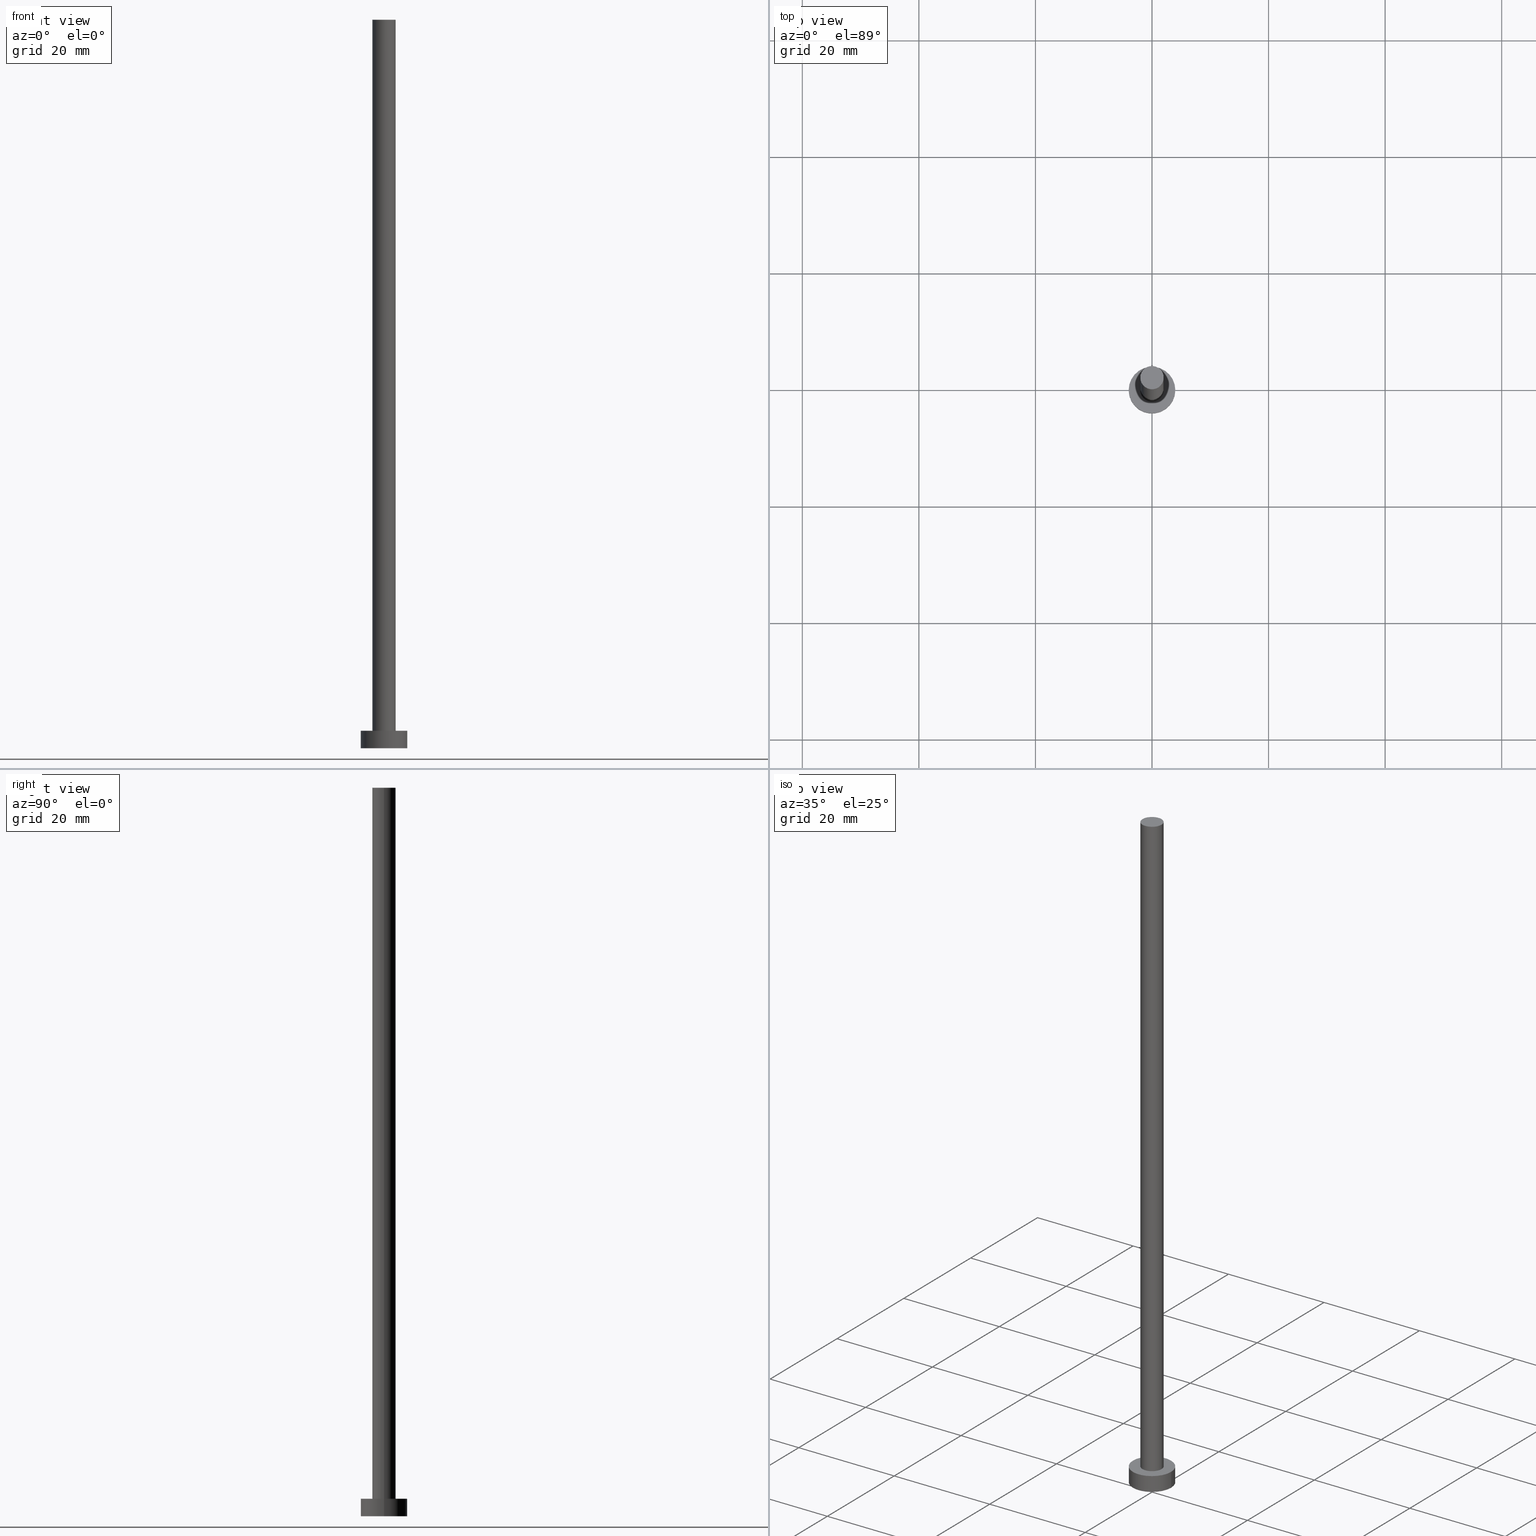
[diagram: canonical four-view strip — front | top / right | iso, engineering-drawing reading convention]
A machine part, canonical four-view strip (front | top / right | iso — engineering-drawing reading convention). The complete STEP part file that produces these views, byte-faithful:
ISO-10303-21;
HEADER;
FILE_DESCRIPTION (( 'STEP AP203' ),
    '1' );
FILE_NAME ('fbfe.STEP',
    '2023-02-13T15:33:39',
    ( '' ),
    ( '' ),
    'SwSTEP 2.0',
    'SolidWorks 2019',
    '' );
FILE_SCHEMA (( 'CONFIG_CONTROL_DESIGN' ));
ENDSEC;

DATA;
#1 = DIRECTION ( 'NONE',  ( 0.000000000000000000, 0.000000000000000000, 1.000000000000000000 ) ) ;
#2 = DIRECTION ( 'NONE',  ( 0.000000000000000000, 0.000000000000000000, 1.000000000000000000 ) ) ;
#3 = ADVANCED_BREP_SHAPE_REPRESENTATION ( 'fbfe', ( #205, #40 ), #12 ) ;
#4 = FACE_OUTER_BOUND ( 'NONE', #8, .T. ) ;
#5 = LINE ( 'NONE', #167, #36 ) ;
#6 = CIRCLE ( 'NONE', #179, 4.000000000000000000 ) ;
#7 = CIRCLE ( 'NONE', #86, 2.000000000000000000 ) ;
#8 = EDGE_LOOP ( 'NONE', ( #144, #73, #32, #38 ) ) ;
#9 = CYLINDRICAL_SURFACE ( 'NONE', #136, 2.000000000000000000 ) ;
#10 = ORIENTED_EDGE ( 'NONE', *, *, #250, .F. ) ;
#11 = EDGE_CURVE ( 'NONE', #169, #105, #16, .T. ) ;
#12 =( GEOMETRIC_REPRESENTATION_CONTEXT ( 3 ) GLOBAL_UNCERTAINTY_ASSIGNED_CONTEXT ( ( #122 ) ) GLOBAL_UNIT_ASSIGNED_CONTEXT ( ( #99, #103, #227 ) ) REPRESENTATION_CONTEXT ( 'NONE', 'WORKASPACE' ) );
#13 = ORIENTED_EDGE ( 'NONE', *, *, #154, .T. ) ;
#14 = COORDINATED_UNIVERSAL_TIME_OFFSET ( 1, 0, .AHEAD. ) ;
#15 = PERSON_AND_ORGANIZATION ( #145, #134 ) ;
#16 = CIRCLE ( 'NONE', #58, 4.000000000000000000 ) ;
#17 = ADVANCED_FACE ( 'NONE', ( #251 ), #191, .T. ) ;
#18 = ADVANCED_FACE ( 'NONE', ( #55 ), #20, .T. ) ;
#19 = APPLICATION_PROTOCOL_DEFINITION ( 'international standard', 'config_control_design', 1994, #168 ) ;
#20 = CYLINDRICAL_SURFACE ( 'NONE', #189, 2.000000000000000000 ) ;
#21 = DIRECTION ( 'NONE',  ( 1.000000000000000000, 0.000000000000000000, -0.000000000000000000 ) ) ;
#22 = APPROVAL ( #50, 'NEUR�EN�' ) ;
#23 = PRODUCT ( 'fbfe', 'fbfe', '', ( #34 ) ) ;
#24 = CARTESIAN_POINT ( 'NONE',  ( 0.000000000000000000, 0.000000000000000000, 3.000000000000000000 ) ) ;
#25 = PERSON_AND_ORGANIZATION_ROLE ( 'creator' ) ;
#26 = CALENDAR_DATE ( 2023, 13, 2 ) ;
#27 = CARTESIAN_POINT ( 'NONE',  ( 0.000000000000000000, 0.000000000000000000, 3.000000000000000000 ) ) ;
#28 = EDGE_LOOP ( 'NONE', ( #83, #236, #13, #101 ) ) ;
#29 = ORIENTED_EDGE ( 'NONE', *, *, #210, .F. ) ;
#30 = DIRECTION ( 'NONE',  ( 1.000000000000000000, 0.000000000000000000, 0.000000000000000000 ) ) ;
#31 = CALENDAR_DATE ( 2023, 13, 2 ) ;
#32 = ORIENTED_EDGE ( 'NONE', *, *, #210, .T. ) ;
#33 = AXIS2_PLACEMENT_3D ( 'NONE', #35, #2, #160 ) ;
#34 = MECHANICAL_CONTEXT ( 'NONE', #79, 'mechanical' ) ;
#35 = CARTESIAN_POINT ( 'NONE',  ( 0.000000000000000000, 0.000000000000000000, 0.000000000000000000 ) ) ;
#36 = VECTOR ( 'NONE', #201, 1000.000000000000000 ) ;
#37 = PERSON_AND_ORGANIZATION_ROLE ( 'design_owner' ) ;
#38 = ORIENTED_EDGE ( 'NONE', *, *, #142, .T. ) ;
#39 = CARTESIAN_POINT ( 'NONE',  ( -2.000000000000000000, 0.000000000000000000, 125.0000000000000000 ) ) ;
#40 = AXIS2_PLACEMENT_3D ( 'NONE', #185, #190, #89 ) ;
#41 = DIRECTION ( 'NONE',  ( -0.000000000000000000, -0.000000000000000000, -1.000000000000000000 ) ) ;
#42 = DIRECTION ( 'NONE',  ( 1.000000000000000000, 0.000000000000000000, 0.000000000000000000 ) ) ;
#43 = APPROVAL ( #233, 'NEUR�EN�' ) ;
#44 = DIRECTION ( 'NONE',  ( -0.000000000000000000, -0.000000000000000000, -1.000000000000000000 ) ) ;
#45 = VECTOR ( 'NONE', #175, 1000.000000000000000 ) ;
#46 = LOCAL_TIME ( 16, 33, 39.00000000000000000, #14 ) ;
#47 = CARTESIAN_POINT ( 'NONE',  ( 0.000000000000000000, 0.000000000000000000, 0.000000000000000000 ) ) ;
#48 = APPROVAL_PERSON_ORGANIZATION ( #222, #22, #104 ) ;
#49 = PLANE ( 'NONE',  #198 ) ;
#50 = APPROVAL_STATUS ( 'not_yet_approved' ) ;
#51 = VERTEX_POINT ( 'NONE', #57 ) ;
#52 = CARTESIAN_POINT ( 'NONE',  ( 0.000000000000000000, 0.000000000000000000, 125.0000000000000000 ) ) ;
#53 = PERSON_AND_ORGANIZATION_ROLE ( 'creator' ) ;
#54 = ADVANCED_FACE ( 'NONE', ( #133 ), #213, .F. ) ;
#55 = FACE_OUTER_BOUND ( 'NONE', #162, .T. ) ;
#56 = DATE_TIME_ROLE ( 'creation_date' ) ;
#57 = CARTESIAN_POINT ( 'NONE',  ( -2.000000000000000000, 0.000000000000000000, 3.000000000000000000 ) ) ;
#58 = AXIS2_PLACEMENT_3D ( 'NONE', #109, #113, #232 ) ;
#59 = CYLINDRICAL_SURFACE ( 'NONE', #92, 4.000000000000000000 ) ;
#60 = PRODUCT_DEFINITION ( 'NEZN�M�', '', #239, #240 ) ;
#61 = LINE ( 'NONE', #238, #45 ) ;
#62 = CARTESIAN_POINT ( 'NONE',  ( 0.000000000000000000, 0.000000000000000000, 3.000000000000000000 ) ) ;
#63 = VECTOR ( 'NONE', #218, 1000.000000000000000 ) ;
#64 = ADVANCED_FACE ( 'NONE', ( #77 ), #59, .T. ) ;
#65 = AXIS2_PLACEMENT_3D ( 'NONE', #149, #204, #164 ) ;
#66 = CC_DESIGN_DATE_AND_TIME_ASSIGNMENT ( #148, #225, ( #70 ) ) ;
#67 = APPROVAL_DATE_TIME ( #181, #22 ) ;
#68 = PERSON_AND_ORGANIZATION ( #145, #134 ) ;
#69 = PERSON_AND_ORGANIZATION ( #145, #134 ) ;
#70 = SECURITY_CLASSIFICATION ( '', '', #165 ) ;
#71 = CARTESIAN_POINT ( 'NONE',  ( 0.000000000000000000, 0.000000000000000000, 125.0000000000000000 ) ) ;
#72 = DATE_AND_TIME ( #235, #46 ) ;
#73 = ORIENTED_EDGE ( 'NONE', *, *, #74, .F. ) ;
#74 = EDGE_CURVE ( 'NONE', #203, #215, #96, .T. ) ;
#75 = LOCAL_TIME ( 16, 33, 39.00000000000000000, #138 ) ;
#76 = DIRECTION ( 'NONE',  ( -1.000000000000000000, 0.000000000000000000, 0.000000000000000000 ) ) ;
#77 = FACE_OUTER_BOUND ( 'NONE', #212, .T. ) ;
#78 = CC_DESIGN_PERSON_AND_ORGANIZATION_ASSIGNMENT ( #15, #53, ( #60 ) ) ;
#79 = APPLICATION_CONTEXT ( 'configuration controlled 3d designs of mechanical parts and assemblies' ) ;
#80 = CARTESIAN_POINT ( 'NONE',  ( 0.000000000000000000, 0.000000000000000000, 125.0000000000000000 ) ) ;
#81 = PRODUCT_RELATED_PRODUCT_CATEGORY ( 'detail', '', ( #23 ) ) ;
#82 = CC_DESIGN_SECURITY_CLASSIFICATION ( #70, ( #239 ) ) ;
#83 = ORIENTED_EDGE ( 'NONE', *, *, #176, .F. ) ;
#84 = CC_DESIGN_PERSON_AND_ORGANIZATION_ASSIGNMENT ( #95, #249, ( #239 ) ) ;
#85 = VERTEX_POINT ( 'NONE', #195 ) ;
#86 = AXIS2_PLACEMENT_3D ( 'NONE', #24, #97, #124 ) ;
#87 = VERTEX_POINT ( 'NONE', #237 ) ;
#88 = ADVANCED_FACE ( 'NONE', ( #4 ), #158, .T. ) ;
#89 = DIRECTION ( 'NONE',  ( 1.000000000000000000, 0.000000000000000000, 0.000000000000000000 ) ) ;
#90 = LOCAL_TIME ( 16, 33, 39.00000000000000000, #223 ) ;
#91 = EDGE_LOOP ( 'NONE', ( #108, #193 ) ) ;
#92 = AXIS2_PLACEMENT_3D ( 'NONE', #98, #44, #76 ) ;
#93 = CC_DESIGN_APPROVAL ( #43, ( #239 ) ) ;
#94 = DIRECTION ( 'NONE',  ( 0.000000000000000000, 0.000000000000000000, 1.000000000000000000 ) ) ;
#95 = PERSON_AND_ORGANIZATION ( #145, #134 ) ;
#96 = CIRCLE ( 'NONE', #114, 4.000000000000000000 ) ;
#97 = DIRECTION ( 'NONE',  ( 0.000000000000000000, 0.000000000000000000, 1.000000000000000000 ) ) ;
#98 = CARTESIAN_POINT ( 'NONE',  ( 0.000000000000000000, 0.000000000000000000, 3.000000000000000000 ) ) ;
#99 =( LENGTH_UNIT ( ) NAMED_UNIT ( * ) SI_UNIT ( .MILLI., .METRE. ) );
#100 = ORIENTED_EDGE ( 'NONE', *, *, #154, .F. ) ;
#101 = ORIENTED_EDGE ( 'NONE', *, *, #209, .T. ) ;
#102 = DIRECTION ( 'NONE',  ( -0.000000000000000000, -0.000000000000000000, -1.000000000000000000 ) ) ;
#103 =( NAMED_UNIT ( * ) PLANE_ANGLE_UNIT ( ) SI_UNIT ( $, .RADIAN. ) );
#104 = APPROVAL_ROLE ( '' ) ;
#105 = VERTEX_POINT ( 'NONE', #220 ) ;
#106 = ORIENTED_EDGE ( 'NONE', *, *, #250, .T. ) ;
#107 = ORIENTED_EDGE ( 'NONE', *, *, #135, .T. ) ;
#108 = ORIENTED_EDGE ( 'NONE', *, *, #142, .F. ) ;
#109 = CARTESIAN_POINT ( 'NONE',  ( 0.000000000000000000, 0.000000000000000000, 0.000000000000000000 ) ) ;
#110 = EDGE_CURVE ( 'NONE', #85, #188, #146, .T. ) ;
#111 = APPROVAL_DATE_TIME ( #184, #43 ) ;
#112 = ORIENTED_EDGE ( 'NONE', *, *, #176, .T. ) ;
#113 = DIRECTION ( 'NONE',  ( 0.000000000000000000, 0.000000000000000000, 1.000000000000000000 ) ) ;
#114 = AXIS2_PLACEMENT_3D ( 'NONE', #62, #157, #137 ) ;
#115 = APPROVAL ( #170, 'NEUR�EN�' ) ;
#116 = DIRECTION ( 'NONE',  ( -0.000000000000000000, -0.000000000000000000, -1.000000000000000000 ) ) ;
#117 = PRODUCT_DEFINITION_SHAPE ( 'NONE', 'NONE',  #60 ) ;
#118 = CARTESIAN_POINT ( 'NONE',  ( 2.000000000000000000, 2.449293598294705921E-16, 125.0000000000000000 ) ) ;
#119 = CARTESIAN_POINT ( 'NONE',  ( -2.000000000000000000, 0.000000000000000000, 125.0000000000000000 ) ) ;
#120 = DIRECTION ( 'NONE',  ( 0.000000000000000000, 0.000000000000000000, 1.000000000000000000 ) ) ;
#121 = CARTESIAN_POINT ( 'NONE',  ( 0.000000000000000000, 0.000000000000000000, 3.000000000000000000 ) ) ;
#122 = UNCERTAINTY_MEASURE_WITH_UNIT (LENGTH_MEASURE( 1.000000000000000082E-05 ), #99, 'distance_accuracy_value', 'NONE');
#123 = CLOSED_SHELL ( 'NONE', ( #18, #64, #88, #234, #54, #214, #17 ) ) ;
#124 = DIRECTION ( 'NONE',  ( 1.000000000000000000, 0.000000000000000000, 0.000000000000000000 ) ) ;
#125 = ORIENTED_EDGE ( 'NONE', *, *, #187, .F. ) ;
#126 = FACE_BOUND ( 'NONE', #226, .T. ) ;
#127 = SHAPE_DEFINITION_REPRESENTATION ( #117, #3 ) ;
#128 = CC_DESIGN_PERSON_AND_ORGANIZATION_ASSIGNMENT ( #192, #37, ( #23 ) ) ;
#129 = CARTESIAN_POINT ( 'NONE',  ( 4.000000000000000000, 4.898587196589412829E-16, 3.000000000000000000 ) ) ;
#130 = VECTOR ( 'NONE', #116, 1000.000000000000000 ) ;
#131 = CARTESIAN_POINT ( 'NONE',  ( 0.000000000000000000, 0.000000000000000000, 125.0000000000000000 ) ) ;
#132 = CC_DESIGN_PERSON_AND_ORGANIZATION_ASSIGNMENT ( #68, #25, ( #239 ) ) ;
#133 = FACE_OUTER_BOUND ( 'NONE', #91, .T. ) ;
#134 = ORGANIZATION ( 'NEUR�EN�', 'NEUR�EN�', '' ) ;
#135 = EDGE_CURVE ( 'NONE', #215, #169, #61, .T. ) ;
#136 = AXIS2_PLACEMENT_3D ( 'NONE', #52, #102, #207 ) ;
#137 = DIRECTION ( 'NONE',  ( 1.000000000000000000, 0.000000000000000000, 0.000000000000000000 ) ) ;
#138 = COORDINATED_UNIVERSAL_TIME_OFFSET ( 1, 0, .AHEAD. ) ;
#139 = LINE ( 'NONE', #39, #63 ) ;
#140 = CC_DESIGN_DATE_AND_TIME_ASSIGNMENT ( #186, #56, ( #60 ) ) ;
#141 = AXIS2_PLACEMENT_3D ( 'NONE', #71, #153, #21 ) ;
#142 = EDGE_CURVE ( 'NONE', #105, #169, #6, .T. ) ;
#143 = DIRECTION ( 'NONE',  ( 0.000000000000000000, 0.000000000000000000, 1.000000000000000000 ) ) ;
#144 = ORIENTED_EDGE ( 'NONE', *, *, #135, .F. ) ;
#145 = PERSON ( 'NEUR�EN�', 'NEUR�EN�', 'NEUR�EN�', ('NEUR�EN�'), ('NEUR�EN�'), ('NEUR�EN�') ) ;
#146 = CIRCLE ( 'NONE', #197, 2.000000000000000000 ) ;
#147 = CIRCLE ( 'NONE', #228, 2.000000000000000000 ) ;
#148 = DATE_AND_TIME ( #31, #90 ) ;
#149 = CARTESIAN_POINT ( 'NONE',  ( 0.000000000000000000, 0.000000000000000000, 125.0000000000000000 ) ) ;
#150 = COORDINATED_UNIVERSAL_TIME_OFFSET ( 1, 0, .AHEAD. ) ;
#151 = ORIENTED_EDGE ( 'NONE', *, *, #74, .T. ) ;
#152 = CIRCLE ( 'NONE', #194, 4.000000000000000000 ) ;
#153 = DIRECTION ( 'NONE',  ( 0.000000000000000000, 0.000000000000000000, 1.000000000000000000 ) ) ;
#154 = EDGE_CURVE ( 'NONE', #188, #51, #139, .T. ) ;
#155 = CC_DESIGN_PERSON_AND_ORGANIZATION_ASSIGNMENT ( #69, #202, ( #70 ) ) ;
#156 = PERSON_AND_ORGANIZATION ( #145, #134 ) ;
#157 = DIRECTION ( 'NONE',  ( 0.000000000000000000, 0.000000000000000000, 1.000000000000000000 ) ) ;
#158 = CYLINDRICAL_SURFACE ( 'NONE', #224, 4.000000000000000000 ) ;
#159 = LOCAL_TIME ( 16, 33, 39.00000000000000000, #150 ) ;
#160 = DIRECTION ( 'NONE',  ( 1.000000000000000000, 0.000000000000000000, -0.000000000000000000 ) ) ;
#161 = FACE_OUTER_BOUND ( 'NONE', #28, .T. ) ;
#162 = EDGE_LOOP ( 'NONE', ( #255, #112, #206, #100 ) ) ;
#163 = APPLICATION_PROTOCOL_DEFINITION ( 'international standard', 'config_control_design', 1994, #79 ) ;
#164 = DIRECTION ( 'NONE',  ( 1.000000000000000000, 0.000000000000000000, 0.000000000000000000 ) ) ;
#165 = SECURITY_CLASSIFICATION_LEVEL ( 'unclassified' ) ;
#166 = ORIENTED_EDGE ( 'NONE', *, *, #110, .T. ) ;
#167 = CARTESIAN_POINT ( 'NONE',  ( -4.000000000000000000, 0.000000000000000000, 3.000000000000000000 ) ) ;
#168 = APPLICATION_CONTEXT ( 'configuration controlled 3d designs of mechanical parts and assemblies' ) ;
#169 = VERTEX_POINT ( 'NONE', #219 ) ;
#170 = APPROVAL_STATUS ( 'not_yet_approved' ) ;
#171 = DIRECTION ( 'NONE',  ( -0.000000000000000000, -0.000000000000000000, -1.000000000000000000 ) ) ;
#172 = DIRECTION ( 'NONE',  ( 1.000000000000000000, 0.000000000000000000, 0.000000000000000000 ) ) ;
#173 = DIRECTION ( 'NONE',  ( 1.000000000000000000, 0.000000000000000000, 0.000000000000000000 ) ) ;
#174 = CC_DESIGN_APPROVAL ( #22, ( #70 ) ) ;
#175 = DIRECTION ( 'NONE',  ( -0.000000000000000000, -0.000000000000000000, -1.000000000000000000 ) ) ;
#176 = EDGE_CURVE ( 'NONE', #85, #87, #199, .T. ) ;
#177 = ORIENTED_EDGE ( 'NONE', *, *, #244, .T. ) ;
#178 = DIRECTION ( 'NONE',  ( 1.000000000000000000, 0.000000000000000000, -0.000000000000000000 ) ) ;
#179 = AXIS2_PLACEMENT_3D ( 'NONE', #47, #120, #173 ) ;
#180 = CARTESIAN_POINT ( 'NONE',  ( 0.000000000000000000, 0.000000000000000000, 3.000000000000000000 ) ) ;
#181 = DATE_AND_TIME ( #245, #159 ) ;
#182 = ORIENTED_EDGE ( 'NONE', *, *, #11, .T. ) ;
#183 = LOCAL_TIME ( 16, 33, 39.00000000000000000, #252 ) ;
#184 = DATE_AND_TIME ( #26, #75 ) ;
#185 = CARTESIAN_POINT ( 'NONE',  ( 0.000000000000000000, 0.000000000000000000, 0.000000000000000000 ) ) ;
#186 = DATE_AND_TIME ( #211, #183 ) ;
#187 = EDGE_CURVE ( 'NONE', #87, #51, #147, .T. ) ;
#188 = VERTEX_POINT ( 'NONE', #119 ) ;
#189 = AXIS2_PLACEMENT_3D ( 'NONE', #131, #171, #253 ) ;
#190 = DIRECTION ( 'NONE',  ( 0.000000000000000000, 0.000000000000000000, 1.000000000000000000 ) ) ;
#191 = PLANE ( 'NONE',  #141 ) ;
#192 = PERSON_AND_ORGANIZATION ( #145, #134 ) ;
#193 = ORIENTED_EDGE ( 'NONE', *, *, #11, .F. ) ;
#194 = AXIS2_PLACEMENT_3D ( 'NONE', #180, #247, #30 ) ;
#195 = CARTESIAN_POINT ( 'NONE',  ( 2.000000000000000000, 2.449293598294705921E-16, 125.0000000000000000 ) ) ;
#196 = CARTESIAN_POINT ( 'NONE',  ( -4.000000000000000000, 0.000000000000000000, 3.000000000000000000 ) ) ;
#197 = AXIS2_PLACEMENT_3D ( 'NONE', #80, #1, #172 ) ;
#198 = AXIS2_PLACEMENT_3D ( 'NONE', #243, #143, #178 ) ;
#199 = LINE ( 'NONE', #118, #130 ) ;
#200 = ORIENTED_EDGE ( 'NONE', *, *, #209, .F. ) ;
#201 = DIRECTION ( 'NONE',  ( -0.000000000000000000, -0.000000000000000000, -1.000000000000000000 ) ) ;
#202 = PERSON_AND_ORGANIZATION_ROLE ( 'classification_officer' ) ;
#203 = VERTEX_POINT ( 'NONE', #196 ) ;
#204 = DIRECTION ( 'NONE',  ( 0.000000000000000000, 0.000000000000000000, 1.000000000000000000 ) ) ;
#205 = MANIFOLD_SOLID_BREP ( 'P�idat vysunut�m3', #123 ) ;
#206 = ORIENTED_EDGE ( 'NONE', *, *, #187, .T. ) ;
#207 = DIRECTION ( 'NONE',  ( -1.000000000000000000, 0.000000000000000000, 0.000000000000000000 ) ) ;
#208 = APPROVAL_PERSON_ORGANIZATION ( #156, #43, #241 ) ;
#209 = EDGE_CURVE ( 'NONE', #51, #87, #7, .T. ) ;
#210 = EDGE_CURVE ( 'NONE', #203, #105, #5, .T. ) ;
#211 = CALENDAR_DATE ( 2023, 13, 2 ) ;
#212 = EDGE_LOOP ( 'NONE', ( #10, #107, #182, #29 ) ) ;
#213 = PLANE ( 'NONE',  #33 ) ;
#214 = ADVANCED_FACE ( 'NONE', ( #161 ), #9, .T. ) ;
#215 = VERTEX_POINT ( 'NONE', #129 ) ;
#216 = DIRECTION ( 'NONE',  ( -1.000000000000000000, 0.000000000000000000, 0.000000000000000000 ) ) ;
#217 = CC_DESIGN_APPROVAL ( #115, ( #60 ) ) ;
#218 = DIRECTION ( 'NONE',  ( -0.000000000000000000, -0.000000000000000000, -1.000000000000000000 ) ) ;
#219 = CARTESIAN_POINT ( 'NONE',  ( 4.000000000000000000, 4.898587196589412829E-16, 0.000000000000000000 ) ) ;
#220 = CARTESIAN_POINT ( 'NONE',  ( -4.000000000000000000, 0.000000000000000000, 0.000000000000000000 ) ) ;
#221 = FACE_OUTER_BOUND ( 'NONE', #246, .T. ) ;
#222 = PERSON_AND_ORGANIZATION ( #145, #134 ) ;
#223 = COORDINATED_UNIVERSAL_TIME_OFFSET ( 1, 0, .AHEAD. ) ;
#224 = AXIS2_PLACEMENT_3D ( 'NONE', #121, #41, #216 ) ;
#225 = DATE_TIME_ROLE ( 'classification_date' ) ;
#226 = EDGE_LOOP ( 'NONE', ( #200, #125 ) ) ;
#227 =( NAMED_UNIT ( * ) SI_UNIT ( $, .STERADIAN. ) SOLID_ANGLE_UNIT ( ) );
#228 = AXIS2_PLACEMENT_3D ( 'NONE', #27, #94, #42 ) ;
#229 = APPROVAL_DATE_TIME ( #72, #115 ) ;
#230 = EDGE_LOOP ( 'NONE', ( #177, #166 ) ) ;
#231 = APPROVAL_ROLE ( '' ) ;
#232 = DIRECTION ( 'NONE',  ( 1.000000000000000000, 0.000000000000000000, 0.000000000000000000 ) ) ;
#233 = APPROVAL_STATUS ( 'not_yet_approved' ) ;
#234 = ADVANCED_FACE ( 'NONE', ( #126, #221 ), #49, .T. ) ;
#235 = CALENDAR_DATE ( 2023, 13, 2 ) ;
#236 = ORIENTED_EDGE ( 'NONE', *, *, #244, .F. ) ;
#237 = CARTESIAN_POINT ( 'NONE',  ( 2.000000000000000000, 2.449293598294705921E-16, 3.000000000000000000 ) ) ;
#238 = CARTESIAN_POINT ( 'NONE',  ( 4.000000000000000000, 4.898587196589412829E-16, 3.000000000000000000 ) ) ;
#239 = PRODUCT_DEFINITION_FORMATION_WITH_SPECIFIED_SOURCE ( 'LIBOVOLN�', '', #23, .NOT_KNOWN. ) ;
#240 = DESIGN_CONTEXT ( 'detailed design', #168, 'design' ) ;
#241 = APPROVAL_ROLE ( '' ) ;
#242 = APPROVAL_PERSON_ORGANIZATION ( #254, #115, #231 ) ;
#243 = CARTESIAN_POINT ( 'NONE',  ( 0.000000000000000000, 0.000000000000000000, 3.000000000000000000 ) ) ;
#244 = EDGE_CURVE ( 'NONE', #188, #85, #248, .T. ) ;
#245 = CALENDAR_DATE ( 2023, 13, 2 ) ;
#246 = EDGE_LOOP ( 'NONE', ( #151, #106 ) ) ;
#247 = DIRECTION ( 'NONE',  ( 0.000000000000000000, 0.000000000000000000, 1.000000000000000000 ) ) ;
#248 = CIRCLE ( 'NONE', #65, 2.000000000000000000 ) ;
#249 = PERSON_AND_ORGANIZATION_ROLE ( 'design_supplier' ) ;
#250 = EDGE_CURVE ( 'NONE', #215, #203, #152, .T. ) ;
#251 = FACE_OUTER_BOUND ( 'NONE', #230, .T. ) ;
#252 = COORDINATED_UNIVERSAL_TIME_OFFSET ( 1, 0, .AHEAD. ) ;
#253 = DIRECTION ( 'NONE',  ( -1.000000000000000000, 0.000000000000000000, 0.000000000000000000 ) ) ;
#254 = PERSON_AND_ORGANIZATION ( #145, #134 ) ;
#255 = ORIENTED_EDGE ( 'NONE', *, *, #110, .F. ) ;
ENDSEC;
END-ISO-10303-21;
